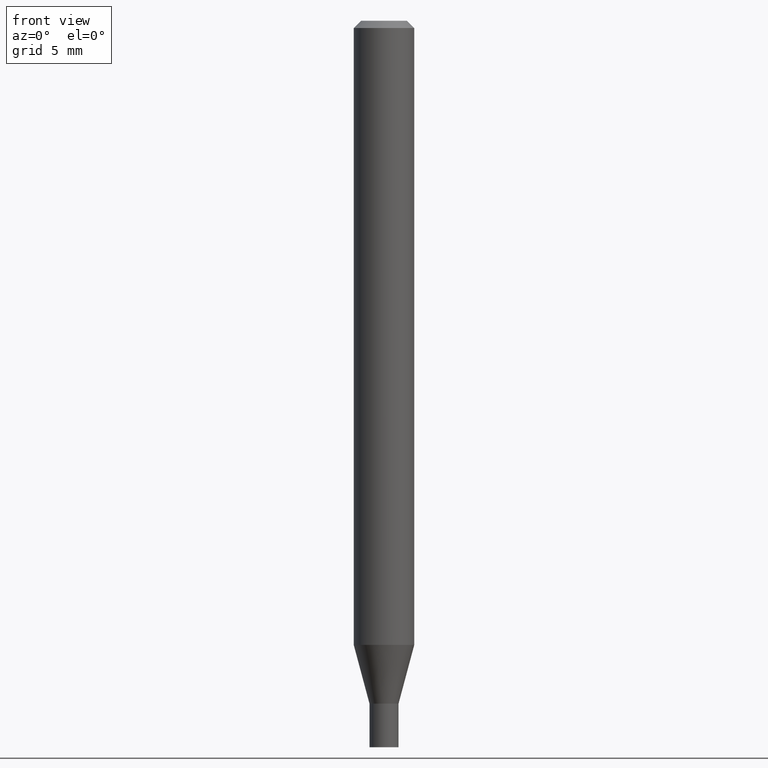
[diagram: clean part render]
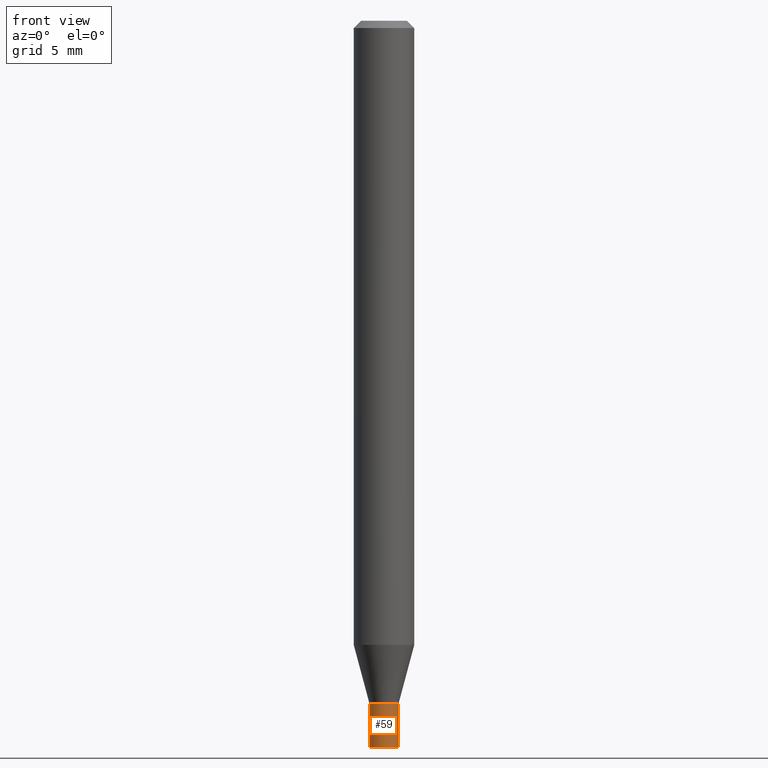
[diagram: same view with one face highlighted and labeled with its STEP entity id]
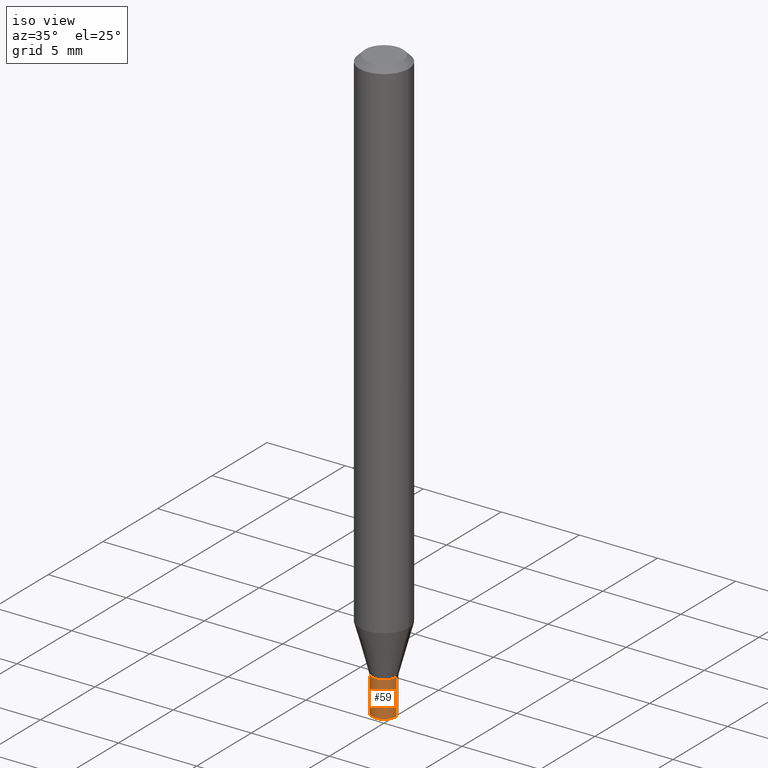
[diagram: same view with one face highlighted and labeled with its STEP entity id]
A machine part, front view. The second image highlights one B-rep face of the part: STEP entity #59.
A second angle (iso view) of the same face is appended — the face is thin or edge-on in the first view.
In plain terms, the highlighted cylindrical surface (edge-blend (fillet) strip) has radius 0.762 mm, axis along (-0, 0, 1).
Its self-contained STEP definition (entity closure, byte-faithful):
#11 = CIRCLE ( 'NONE', #238, 0.02999999999999999889 ) ;
#32 = CARTESIAN_POINT ( 'NONE',  ( -0.02999999999999999889, -4.866942527288747877E-15, -1.500000000000000222 ) ) ;
#35 = DIRECTION ( 'NONE',  ( 1.000000000000000000, -6.982962677686267499E-15, 4.876176775795936353E-29 ) ) ;
#59 = ADVANCED_FACE ( 'NONE', ( #205 ), #346, .T. ) ;
#62 = VERTEX_POINT ( 'NONE', #423 ) ;
#69 = CARTESIAN_POINT ( 'NONE',  ( 0.02999999999999999889, -5.132477568099424807E-15, -1.410000000000000364 ) ) ;
#73 = CIRCLE ( 'NONE', #243, 0.02999999999999999889 ) ;
#81 = ORIENTED_EDGE ( 'NONE', *, *, #464, .T. ) ;
#83 = CARTESIAN_POINT ( 'NONE',  ( 0.02999999999999999889, -5.446710888595306494E-15, -1.500000000000000222 ) ) ;
#86 = DIRECTION ( 'NONE',  ( -2.445468806185136877E-29, 3.491481338843145188E-15, 1.000000000000000000 ) ) ;
#109 = DIRECTION ( 'NONE',  ( -2.445468806185136597E-29, 3.491481338843145583E-15, 1.000000000000000000 ) ) ;
#124 = ORIENTED_EDGE ( 'NONE', *, *, #198, .F. ) ;
#130 = CARTESIAN_POINT ( 'NONE',  ( -0.02999999999999999889, 2.131628207280300479E-16, -1.475680527076471707E-30 ) ) ;
#140 = ORIENTED_EDGE ( 'NONE', *, *, #358, .F. ) ;
#162 = DIRECTION ( 'NONE',  ( -2.445468806185136877E-29, 3.491481338843145188E-15, 1.000000000000000000 ) ) ;
#171 = VECTOR ( 'NONE', #86, 39.37007874015748143 ) ;
#198 = EDGE_CURVE ( 'NONE', #62, #219, #11, .T. ) ;
#205 = FACE_OUTER_BOUND ( 'NONE', #380, .T. ) ;
#216 = VERTEX_POINT ( 'NONE', #32 ) ;
#219 = VERTEX_POINT ( 'NONE', #69 ) ;
#231 = DIRECTION ( 'NONE',  ( -2.445468806185136597E-29, 3.491481338843145583E-15, 1.000000000000000000 ) ) ;
#238 = AXIS2_PLACEMENT_3D ( 'NONE', #282, #109, #414 ) ;
#243 = AXIS2_PLACEMENT_3D ( 'NONE', #330, #231, #379 ) ;
#274 = ORIENTED_EDGE ( 'NONE', *, *, #403, .T. ) ;
#282 = CARTESIAN_POINT ( 'NONE',  ( 3.448111016721043229E-29, -4.922988687768836490E-15, -1.410000000000000364 ) ) ;
#298 = CARTESIAN_POINT ( 'NONE',  ( 0.02999999999999999889, -2.094888803305880210E-16, 1.462853032738780878E-30 ) ) ;
#303 = VERTEX_POINT ( 'NONE', #83 ) ;
#306 = LINE ( 'NONE', #130, #405 ) ;
#314 = CARTESIAN_POINT ( 'NONE',  ( 0.000000000000000000, 0.000000000000000000, 0.000000000000000000 ) ) ;
#316 = AXIS2_PLACEMENT_3D ( 'NONE', #314, #354, #35 ) ;
#330 = CARTESIAN_POINT ( 'NONE',  ( 3.668203209277704895E-29, -5.237222008264718177E-15, -1.500000000000000222 ) ) ;
#346 = CYLINDRICAL_SURFACE ( 'NONE', #316, 0.02999999999999999889 ) ;
#354 = DIRECTION ( 'NONE',  ( -2.445468806185136597E-29, 3.491481338843145583E-15, 1.000000000000000000 ) ) ;
#358 = EDGE_CURVE ( 'NONE', #216, #62, #306, .T. ) ;
#379 = DIRECTION ( 'NONE',  ( 1.000000000000000000, -6.982962677686268288E-15, 0.000000000000000000 ) ) ;
#380 = EDGE_LOOP ( 'NONE', ( #140, #81, #274, #124 ) ) ;
#403 = EDGE_CURVE ( 'NONE', #303, #219, #458, .T. ) ;
#405 = VECTOR ( 'NONE', #162, 39.37007874015748143 ) ;
#414 = DIRECTION ( 'NONE',  ( 1.000000000000000000, -6.982962677686268288E-15, 0.000000000000000000 ) ) ;
#423 = CARTESIAN_POINT ( 'NONE',  ( -0.02999999999999999889, -4.866942527288747877E-15, -1.410000000000000364 ) ) ;
#458 = LINE ( 'NONE', #298, #171 ) ;
#464 = EDGE_CURVE ( 'NONE', #216, #303, #73, .T. ) ;